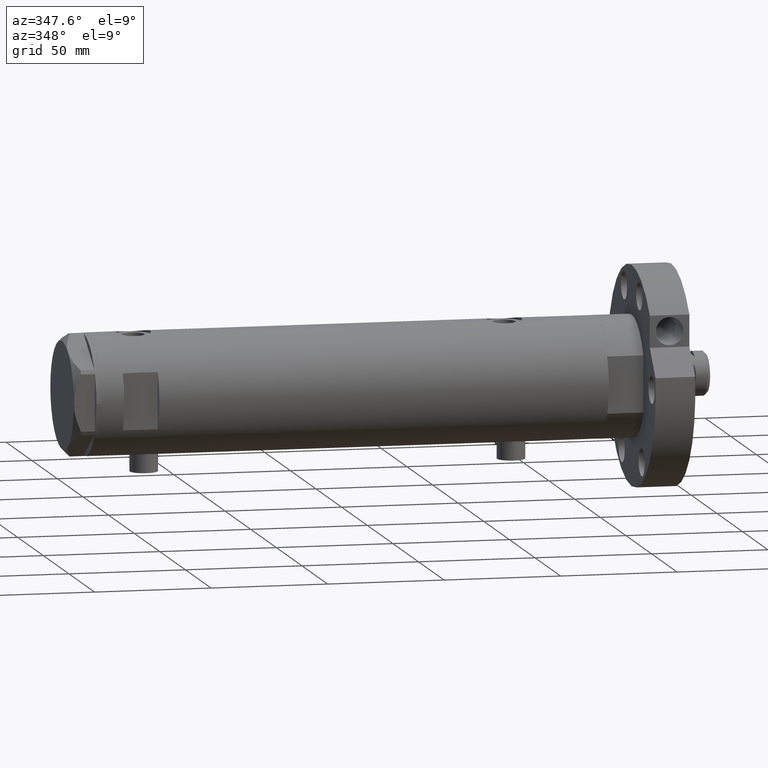
[diagram: clean part render]
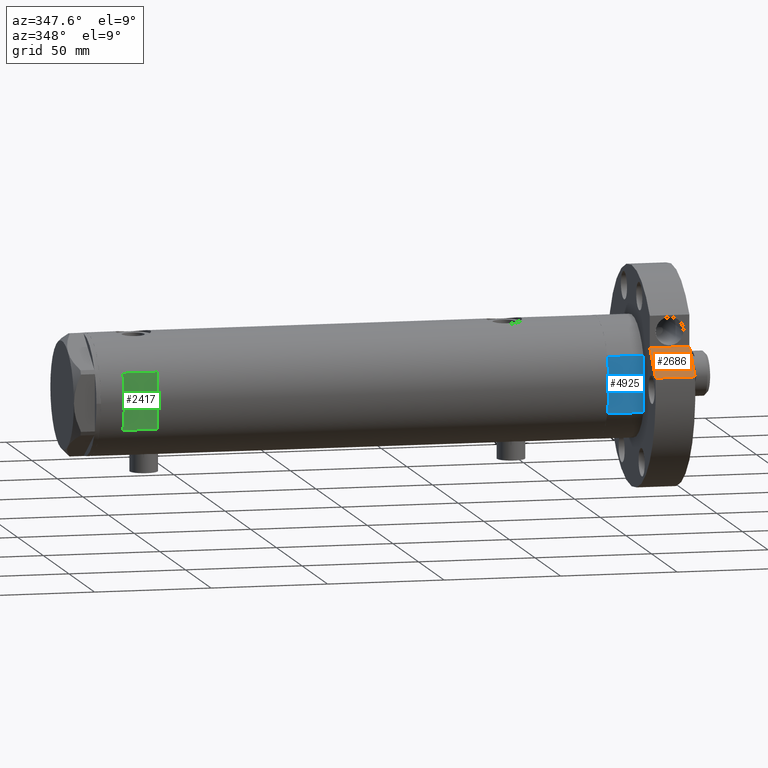
[diagram: same view with three faces highlighted in distinct colors, each labeled with its STEP entity id]
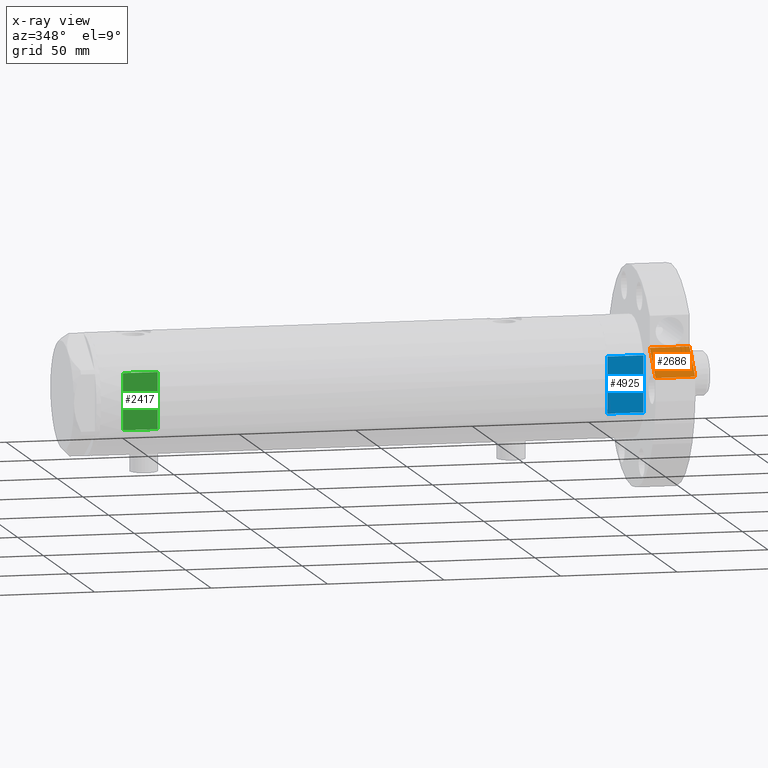
[diagram: x-ray of the same camera — body ghosted, the three highlighted faces saturated]
A machine part, auxiliary view with three faces highlighted in distinct colors.
The next image is the same camera in x-ray (body ghosted, the three faces saturated) — at least one of them is partly hidden behind the body in this view.
Their STEP definitions:

[orange] entity #2686 — the highlighted planar face has unit normal (-0, 0.7071, -0.7071).
#86 = ORIENTED_EDGE ( 'NONE', *, *, #4622, .T. ) ;
#251 = ORIENTED_EDGE ( 'NONE', *, *, #3189, .F. ) ;
#488 = VECTOR ( 'NONE', #3917, 1000.000000000000000 ) ;
#623 = DIRECTION ( 'NONE',  ( 0.7071067811865511255, -0.7071067811865440200, -0.000000000000000000 ) ) ;
#681 = VERTEX_POINT ( 'NONE', #5466 ) ;
#693 = AXIS2_PLACEMENT_3D ( 'NONE', #4190, #4742, #2784 ) ;
#695 = FACE_OUTER_BOUND ( 'NONE', #6297, .T. ) ;
#838 = VECTOR ( 'NONE', #2538, 1000.000000000000000 ) ;
#994 = EDGE_CURVE ( 'NONE', #1521, #1831, #2469, .T. ) ;
#1397 = DIRECTION ( 'NONE',  ( 0.7071067811865511255, -0.7071067811865440200, 0.000000000000000000 ) ) ;
#1521 = VERTEX_POINT ( 'NONE', #4692 ) ;
#1802 = VERTEX_POINT ( 'NONE', #3228 ) ;
#1803 = ORIENTED_EDGE ( 'NONE', *, *, #994, .T. ) ;
#1831 = VERTEX_POINT ( 'NONE', #2052 ) ;
#2052 = CARTESIAN_POINT ( 'NONE',  ( 6.092310621118299352, 46.60347359688769586, 17.00000000000000000 ) ) ;
#2469 = LINE ( 'NONE', #4040, #838 ) ;
#2498 = CARTESIAN_POINT ( 'NONE',  ( 17.22217135699461110, 35.47361286101150313, 0.000000000000000000 ) ) ;
#2538 = DIRECTION ( 'NONE',  ( -0.000000000000000000, -0.000000000000000000, 1.000000000000000000 ) ) ;
#2638 = LINE ( 'NONE', #5123, #5317 ) ;
#2686 = ADVANCED_FACE ( 'NONE', ( #695 ), #2711, .F. ) ;
#2711 = PLANE ( 'NONE',  #693 ) ;
#2784 = DIRECTION ( 'NONE',  ( 0.7071067811865511255, -0.7071067811865440200, 0.000000000000000000 ) ) ;
#3031 = LINE ( 'NONE', #2498, #488 ) ;
#3189 = EDGE_CURVE ( 'NONE', #1521, #1802, #2638, .T. ) ;
#3228 = CARTESIAN_POINT ( 'NONE',  ( 17.22217135699460755, 35.47361286101150313, 0.000000000000000000 ) ) ;
#3893 = LINE ( 'NONE', #5915, #3965 ) ;
#3917 = DIRECTION ( 'NONE',  ( -0.000000000000000000, -0.000000000000000000, 1.000000000000000000 ) ) ;
#3965 = VECTOR ( 'NONE', #1397, 999.9999999999998863 ) ;
#4040 = CARTESIAN_POINT ( 'NONE',  ( 6.092310621118299352, 46.60347359688769586, 0.000000000000000000 ) ) ;
#4190 = CARTESIAN_POINT ( 'NONE',  ( 17.22217135699461110, 35.47361286101150313, 0.000000000000000000 ) ) ;
#4517 = ORIENTED_EDGE ( 'NONE', *, *, #4524, .F. ) ;
#4524 = EDGE_CURVE ( 'NONE', #1802, #681, #3031, .T. ) ;
#4622 = EDGE_CURVE ( 'NONE', #1831, #681, #3893, .T. ) ;
#4692 = CARTESIAN_POINT ( 'NONE',  ( 6.092310621118299352, 46.60347359688769586, 0.000000000000000000 ) ) ;
#4742 = DIRECTION ( 'NONE',  ( -0.7071067811865440200, -0.7071067811865511255, 0.000000000000000000 ) ) ;
#5123 = CARTESIAN_POINT ( 'NONE',  ( 17.22217135699461110, 35.47361286101150313, 0.000000000000000000 ) ) ;
#5317 = VECTOR ( 'NONE', #623, 999.9999999999998863 ) ;
#5466 = CARTESIAN_POINT ( 'NONE',  ( 17.22217135699461110, 35.47361286101150313, 17.00000000000000000 ) ) ;
#5915 = CARTESIAN_POINT ( 'NONE',  ( 26.34789210900296652, 26.34789210900323297, 17.00000000000000000 ) ) ;
#6297 = EDGE_LOOP ( 'NONE', ( #86, #4517, #251, #1803 ) ) ;

[blue] entity #4925 — the highlighted planar face has unit normal (-0, 1, 0).
#19 = DIRECTION ( 'NONE',  ( -1.000000000000000000, -0.000000000000000000, -0.000000000000000000 ) ) ;
#70 = VECTOR ( 'NONE', #3059, 1000.000000000000000 ) ;
#769 = ORIENTED_EDGE ( 'NONE', *, *, #4449, .T. ) ;
#955 = FACE_OUTER_BOUND ( 'NONE', #4231, .T. ) ;
#1078 = LINE ( 'NONE', #2585, #70 ) ;
#1304 = CARTESIAN_POINT ( 'NONE',  ( 12.12435565298215323, -22.99999999999999645, 0.000000000000000000 ) ) ;
#1364 = LINE ( 'NONE', #1304, #1664 ) ;
#1570 = CARTESIAN_POINT ( 'NONE',  ( -12.12435565298215145, -22.99999999999999645, 0.000000000000000000 ) ) ;
#1664 = VECTOR ( 'NONE', #5270, 1000.000000000000000 ) ;
#1990 = ORIENTED_EDGE ( 'NONE', *, *, #4302, .F. ) ;
#2517 = VERTEX_POINT ( 'NONE', #2690 ) ;
#2585 = CARTESIAN_POINT ( 'NONE',  ( -12.12435565298215145, -22.99999999999999645, 0.000000000000000000 ) ) ;
#2624 = DIRECTION ( 'NONE',  ( -0.000000000000000000, -0.000000000000000000, 1.000000000000000000 ) ) ;
#2690 = CARTESIAN_POINT ( 'NONE',  ( -12.12435565298215323, -22.99999999999999645, 15.50000000000000000 ) ) ;
#2931 = AXIS2_PLACEMENT_3D ( 'NONE', #4488, #4943, #4001 ) ;
#2970 = PLANE ( 'NONE',  #2931 ) ;
#3059 = DIRECTION ( 'NONE',  ( -1.000000000000000000, -0.000000000000000000, -0.000000000000000000 ) ) ;
#3111 = CARTESIAN_POINT ( 'NONE',  ( -12.12435565298215501, -22.99999999999999645, 0.000000000000000000 ) ) ;
#3299 = EDGE_CURVE ( 'NONE', #6233, #2517, #4003, .T. ) ;
#3689 = CARTESIAN_POINT ( 'NONE',  ( 12.12435565298215323, -22.99999999999999645, 0.000000000000000000 ) ) ;
#4001 = DIRECTION ( 'NONE',  ( 0.000000000000000000, -0.000000000000000000, 1.000000000000000000 ) ) ;
#4003 = LINE ( 'NONE', #4428, #5513 ) ;
#4231 = EDGE_LOOP ( 'NONE', ( #6091, #1990, #4823, #769 ) ) ;
#4302 = EDGE_CURVE ( 'NONE', #5633, #2517, #6068, .T. ) ;
#4428 = CARTESIAN_POINT ( 'NONE',  ( -12.12435565298215145, -22.99999999999999645, 15.50000000000000000 ) ) ;
#4449 = EDGE_CURVE ( 'NONE', #5921, #6233, #1364, .T. ) ;
#4488 = CARTESIAN_POINT ( 'NONE',  ( -12.12435565298215145, -22.99999999999999645, 0.000000000000000000 ) ) ;
#4575 = CARTESIAN_POINT ( 'NONE',  ( 12.12435565298215323, -22.99999999999999645, 15.50000000000000000 ) ) ;
#4823 = ORIENTED_EDGE ( 'NONE', *, *, #4955, .F. ) ;
#4925 = ADVANCED_FACE ( 'NONE', ( #955 ), #2970, .F. ) ;
#4943 = DIRECTION ( 'NONE',  ( -0.000000000000000000, 1.000000000000000000, 0.000000000000000000 ) ) ;
#4955 = EDGE_CURVE ( 'NONE', #5921, #5633, #1078, .T. ) ;
#5105 = VECTOR ( 'NONE', #2624, 1000.000000000000000 ) ;
#5270 = DIRECTION ( 'NONE',  ( -0.000000000000000000, -0.000000000000000000, 1.000000000000000000 ) ) ;
#5513 = VECTOR ( 'NONE', #19, 1000.000000000000000 ) ;
#5633 = VERTEX_POINT ( 'NONE', #3111 ) ;
#5921 = VERTEX_POINT ( 'NONE', #3689 ) ;
#6068 = LINE ( 'NONE', #1570, #5105 ) ;
#6091 = ORIENTED_EDGE ( 'NONE', *, *, #3299, .T. ) ;
#6233 = VERTEX_POINT ( 'NONE', #4575 ) ;

[green] entity #2417 — the highlighted planar face has unit normal (-0, 1, 0).
#94 = DIRECTION ( 'NONE',  ( -0.000000000000000000, -0.000000000000000000, -1.000000000000000000 ) ) ;
#184 = CARTESIAN_POINT ( 'NONE',  ( 12.12435565298214080, -23.00000000000000355, -108.9500000000000028 ) ) ;
#312 = LINE ( 'NONE', #3872, #5009 ) ;
#410 = EDGE_LOOP ( 'NONE', ( #1229, #5655, #3082, #804 ) ) ;
#431 = VERTEX_POINT ( 'NONE', #4163 ) ;
#495 = VECTOR ( 'NONE', #2206, 1000.000000000000000 ) ;
#503 = EDGE_CURVE ( 'NONE', #5725, #1869, #312, .T. ) ;
#804 = ORIENTED_EDGE ( 'NONE', *, *, #6449, .F. ) ;
#810 = LINE ( 'NONE', #184, #495 ) ;
#1229 = ORIENTED_EDGE ( 'NONE', *, *, #3734, .T. ) ;
#1437 = DIRECTION ( 'NONE',  ( 1.000000000000000000, -0.000000000000000000, -0.000000000000000000 ) ) ;
#1869 = VERTEX_POINT ( 'NONE', #3961 ) ;
#2016 = DIRECTION ( 'NONE',  ( 1.000000000000000000, -0.000000000000000000, -0.000000000000000000 ) ) ;
#2196 = VERTEX_POINT ( 'NONE', #5021 ) ;
#2206 = DIRECTION ( 'NONE',  ( 0.000000000000000000, 0.000000000000000000, 1.000000000000000000 ) ) ;
#2417 = ADVANCED_FACE ( 'NONE', ( #3969 ), #2551, .F. ) ;
#2551 = PLANE ( 'NONE',  #5504 ) ;
#2718 = VECTOR ( 'NONE', #2016, 1000.000000000000000 ) ;
#3082 = ORIENTED_EDGE ( 'NONE', *, *, #5404, .T. ) ;
#3635 = CARTESIAN_POINT ( 'NONE',  ( -12.12435565298214080, -23.00000000000000355, 83.95000000000001705 ) ) ;
#3734 = EDGE_CURVE ( 'NONE', #2196, #5725, #5553, .T. ) ;
#3872 = CARTESIAN_POINT ( 'NONE',  ( -26.00000000000000355, -23.00000000000000355, 83.95000000000003126 ) ) ;
#3923 = LINE ( 'NONE', #4507, #2718 ) ;
#3961 = CARTESIAN_POINT ( 'NONE',  ( 12.12435565298214080, -23.00000000000000355, 83.95000000000001705 ) ) ;
#3969 = FACE_OUTER_BOUND ( 'NONE', #410, .T. ) ;
#3986 = CARTESIAN_POINT ( 'NONE',  ( -12.12435565298214080, -23.00000000000000355, -108.9500000000000028 ) ) ;
#4163 = CARTESIAN_POINT ( 'NONE',  ( 12.12435565298214080, -23.00000000000000355, 98.95000000000001705 ) ) ;
#4507 = CARTESIAN_POINT ( 'NONE',  ( -26.00000000000000355, -23.00000000000000355, 98.95000000000001705 ) ) ;
#4521 = DIRECTION ( 'NONE',  ( 0.000000000000000000, 1.000000000000000000, 0.000000000000000000 ) ) ;
#5002 = CARTESIAN_POINT ( 'NONE',  ( -26.00000000000000355, -23.00000000000000355, 98.95000000000001705 ) ) ;
#5009 = VECTOR ( 'NONE', #1437, 1000.000000000000000 ) ;
#5021 = CARTESIAN_POINT ( 'NONE',  ( -12.12435565298214080, -23.00000000000000355, 98.95000000000001705 ) ) ;
#5404 = EDGE_CURVE ( 'NONE', #1869, #431, #810, .T. ) ;
#5504 = AXIS2_PLACEMENT_3D ( 'NONE', #5002, #4521, #5535 ) ;
#5535 = DIRECTION ( 'NONE',  ( 0.000000000000000000, -0.000000000000000000, 1.000000000000000000 ) ) ;
#5553 = LINE ( 'NONE', #3986, #6471 ) ;
#5655 = ORIENTED_EDGE ( 'NONE', *, *, #503, .T. ) ;
#5725 = VERTEX_POINT ( 'NONE', #3635 ) ;
#6449 = EDGE_CURVE ( 'NONE', #2196, #431, #3923, .T. ) ;
#6471 = VECTOR ( 'NONE', #94, 1000.000000000000000 ) ;